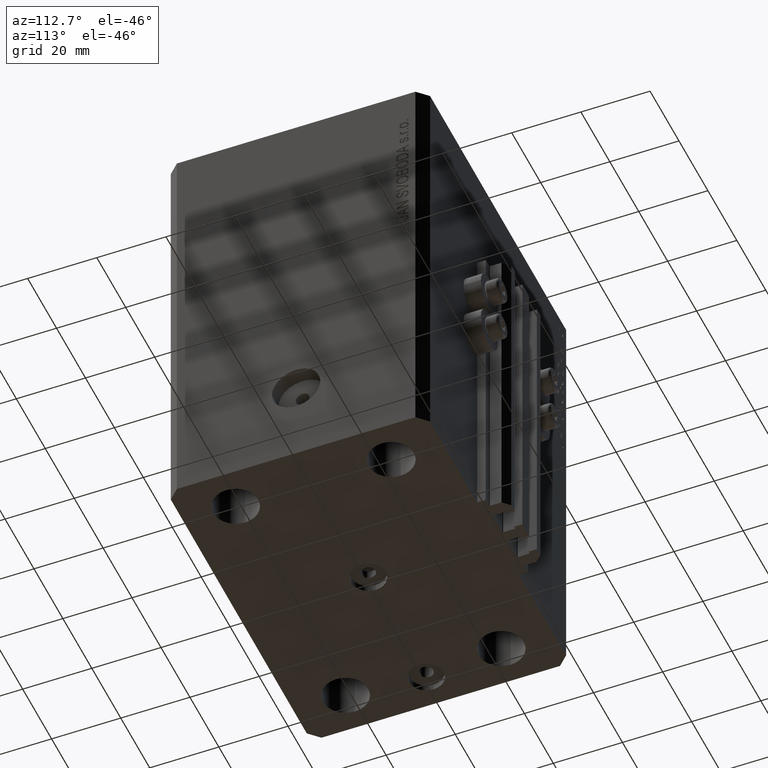
[diagram: clean part render]
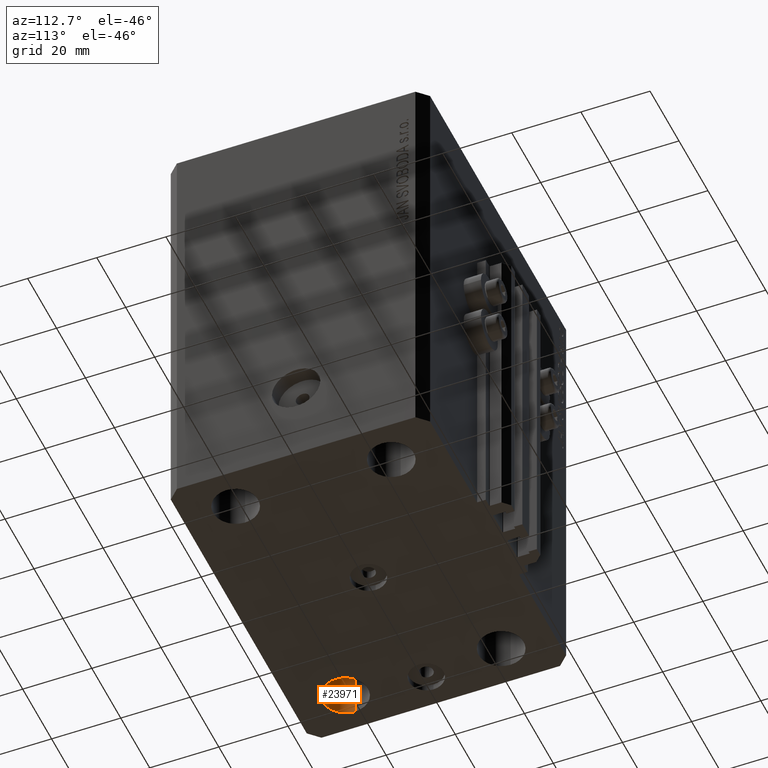
[diagram: same view with one face highlighted and labeled with its STEP entity id]
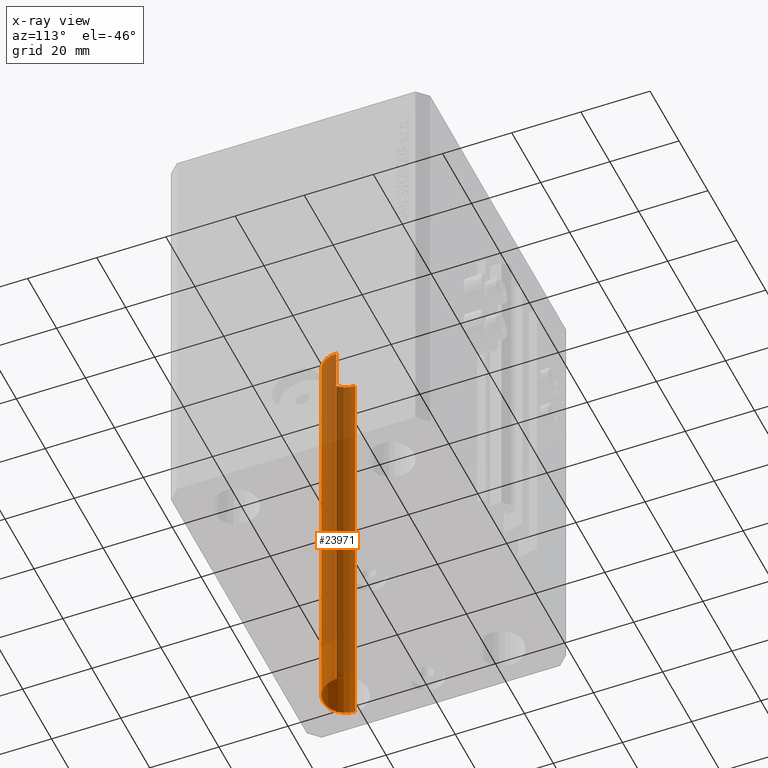
[diagram: x-ray of the same camera — body ghosted, the highlighted face saturated]
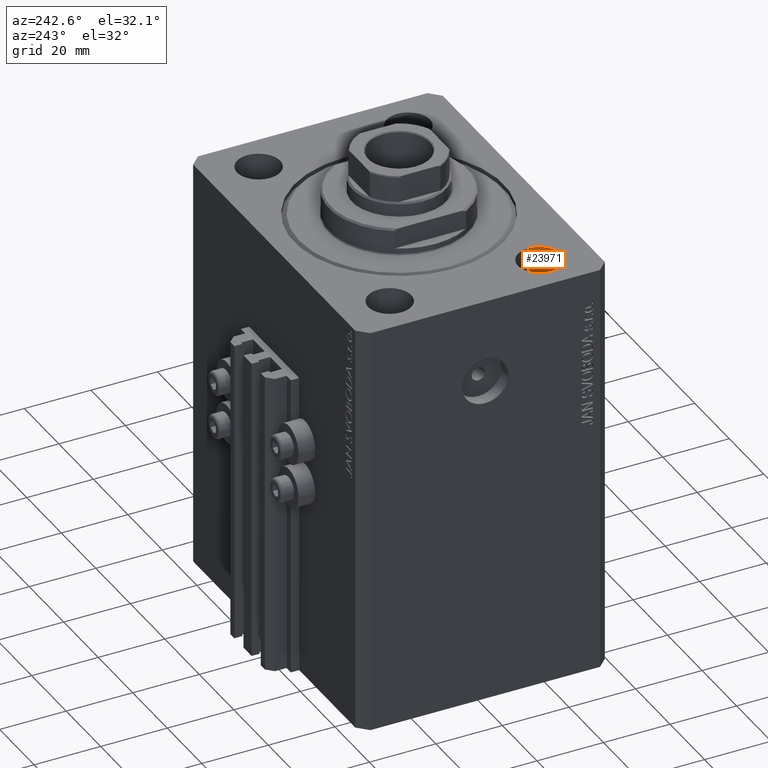
[diagram: same view with one face highlighted and labeled with its STEP entity id]
A machine part, auxiliary view. The second image highlights one B-rep face of the part: STEP entity #23971.
The next image is the same camera in x-ray: the body ghosted, the highlighted face saturated — about 85% of this face is hidden behind the body in this view.
A second angle (auxiliary view) of the same face is appended — the face is thin or edge-on in the first view.
In plain terms, the highlighted cylindrical surface (edge-blend (fillet) strip) has radius 6.5 mm, axis along (0, 0, 1).
Its self-contained STEP definition (entity closure, byte-faithful):
#748 = CARTESIAN_POINT ( 'NONE',  ( -37.99999999999999289, -22.50000000000000000, -125.0000000000000000 ) ) ;
#1004 = VERTEX_POINT ( 'NONE', #27867 ) ;
#1409 = VECTOR ( 'NONE', #29496, 1000.000000000000000 ) ;
#2003 = CIRCLE ( 'NONE', #28762, 6.499999999999999112 ) ;
#7225 = CARTESIAN_POINT ( 'NONE',  ( -31.49999999999999289, -22.50000000000000000, -125.0000000000000000 ) ) ;
#7473 = CARTESIAN_POINT ( 'NONE',  ( -31.49999999999999289, -22.50000000000000000, -143.3847763108502136 ) ) ;
#12738 = CIRCLE ( 'NONE', #46466, 6.499999999999999112 ) ;
#13646 = DIRECTION ( 'NONE',  ( -0.000000000000000000, -0.000000000000000000, 1.000000000000000000 ) ) ;
#13708 = CARTESIAN_POINT ( 'NONE',  ( -37.99999999999999289, -22.50000000000000000, 0.000000000000000000 ) ) ;
#17695 = FACE_OUTER_BOUND ( 'NONE', #28693, .T. ) ;
#18529 = ORIENTED_EDGE ( 'NONE', *, *, #33494, .T. ) ;
#19596 = ORIENTED_EDGE ( 'NONE', *, *, #19807, .F. ) ;
#19807 = EDGE_CURVE ( 'NONE', #29204, #1004, #29261, .T. ) ;
#21286 = CARTESIAN_POINT ( 'NONE',  ( -37.99999999999999289, -22.50000000000000000, -143.3847763108502136 ) ) ;
#23971 = ADVANCED_FACE ( 'NONE', ( #17695 ), #32296, .F. ) ;
#25010 = ORIENTED_EDGE ( 'NONE', *, *, #30547, .T. ) ;
#26580 = DIRECTION ( 'NONE',  ( -0.000000000000000000, -0.000000000000000000, -1.000000000000000000 ) ) ;
#27867 = CARTESIAN_POINT ( 'NONE',  ( -31.49999999999999289, -22.50000000000000000, 0.000000000000000000 ) ) ;
#27903 = VECTOR ( 'NONE', #46866, 1000.000000000000000 ) ;
#28007 = VERTEX_POINT ( 'NONE', #36342 ) ;
#28208 = LINE ( 'NONE', #35154, #27903 ) ;
#28693 = EDGE_LOOP ( 'NONE', ( #32204, #25010, #18529, #19596 ) ) ;
#28697 = DIRECTION ( 'NONE',  ( 1.000000000000000000, 0.000000000000000000, 0.000000000000000000 ) ) ;
#28762 = AXIS2_PLACEMENT_3D ( 'NONE', #13708, #36810, #43748 ) ;
#29204 = VERTEX_POINT ( 'NONE', #7225 ) ;
#29261 = LINE ( 'NONE', #7473, #1409 ) ;
#29496 = DIRECTION ( 'NONE',  ( -0.000000000000000000, -0.000000000000000000, 1.000000000000000000 ) ) ;
#30547 = EDGE_CURVE ( 'NONE', #43481, #28007, #28208, .T. ) ;
#32204 = ORIENTED_EDGE ( 'NONE', *, *, #38036, .T. ) ;
#32296 = CYLINDRICAL_SURFACE ( 'NONE', #32968, 6.499999999999999112 ) ;
#32968 = AXIS2_PLACEMENT_3D ( 'NONE', #21286, #13646, #28697 ) ;
#33494 = EDGE_CURVE ( 'NONE', #28007, #1004, #2003, .T. ) ;
#35154 = CARTESIAN_POINT ( 'NONE',  ( -44.49999999999999289, -22.50000000000000000, -143.3847763108502136 ) ) ;
#36342 = CARTESIAN_POINT ( 'NONE',  ( -44.49999999999999289, -22.50000000000000000, 0.000000000000000000 ) ) ;
#36810 = DIRECTION ( 'NONE',  ( 0.000000000000000000, 0.000000000000000000, 1.000000000000000000 ) ) ;
#38036 = EDGE_CURVE ( 'NONE', #29204, #43481, #12738, .T. ) ;
#39919 = CARTESIAN_POINT ( 'NONE',  ( -44.49999999999999289, -22.50000000000000000, -125.0000000000000000 ) ) ;
#40926 = DIRECTION ( 'NONE',  ( 1.000000000000000000, 0.000000000000000000, 0.000000000000000000 ) ) ;
#43481 = VERTEX_POINT ( 'NONE', #39919 ) ;
#43748 = DIRECTION ( 'NONE',  ( 1.000000000000000000, 0.000000000000000000, 0.000000000000000000 ) ) ;
#46466 = AXIS2_PLACEMENT_3D ( 'NONE', #748, #26580, #40926 ) ;
#46866 = DIRECTION ( 'NONE',  ( -0.000000000000000000, -0.000000000000000000, 1.000000000000000000 ) ) ;